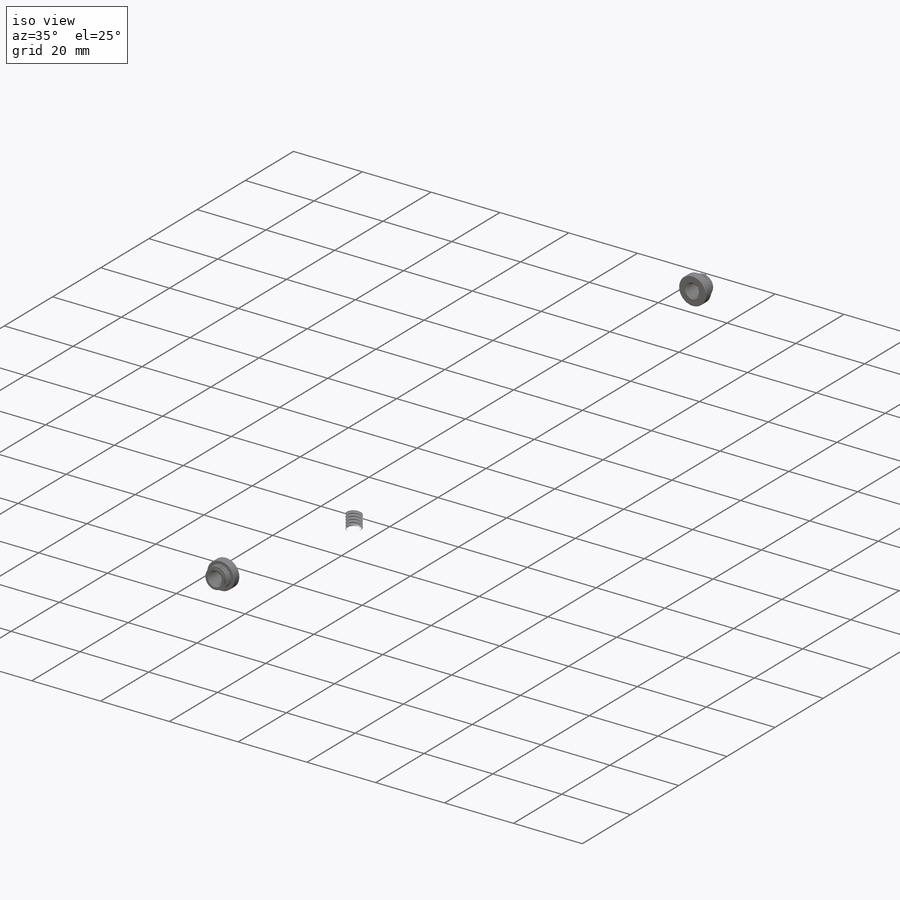
[diagram: iso view]
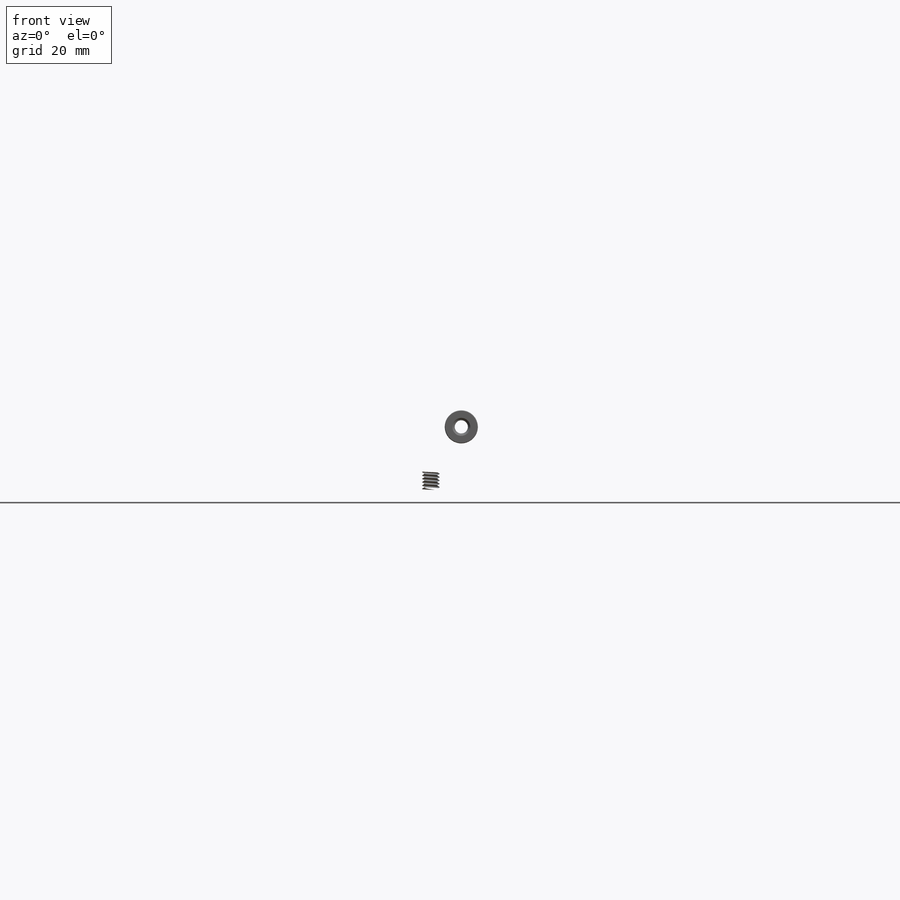
[diagram: front view]
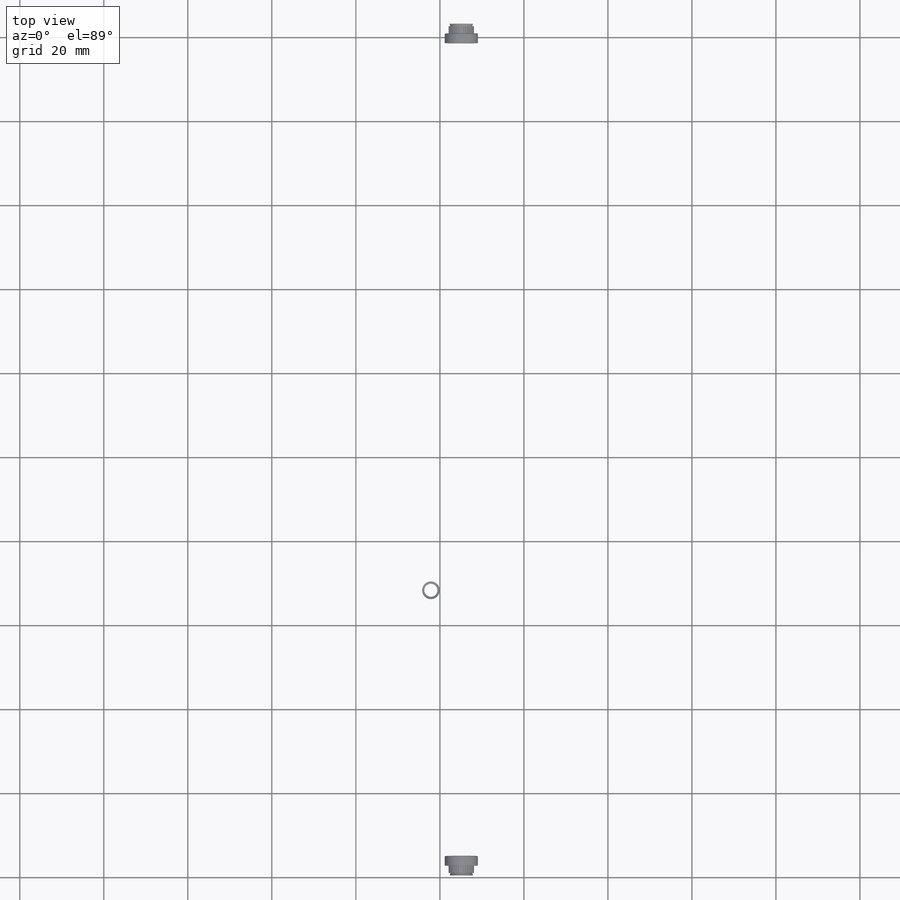
[diagram: top view]
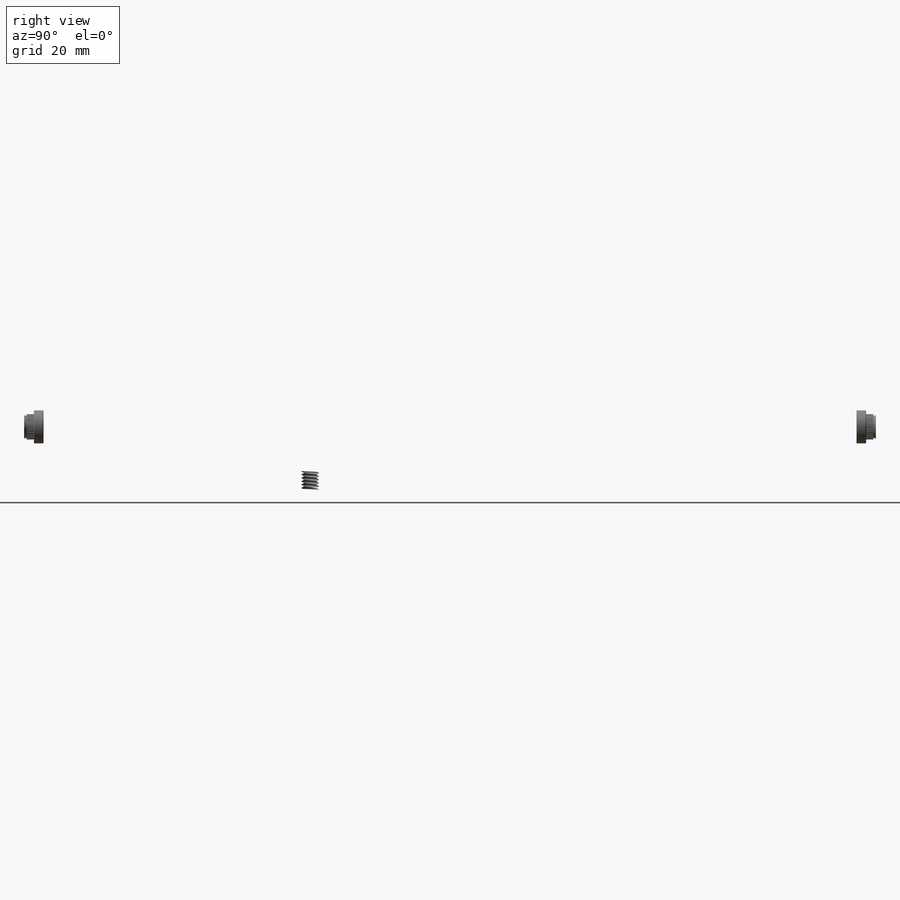
[diagram: right view]
SOLIDWORKS PART (.sldprt)
format: sldprt  version: not decoded by parser v0  size: 11,066,880 bytes
history: native  units: mm
features: sketch x27, move_body x17, extrude x15, cut_extrude x10, fillet x5, mirror x2, material x1, delete_body x1 + 17 further entries (+97 scaffold rows collapsed; 85 parser-record rows omitted)
feature tree (277):
  scaffold x97  (default folders/planes/origin — collapsed)
  material  "Material <not specified>"
  sketch  "Sketch3"  dims[D1=5.4102mm D2=15.875mm D3=15.875mm]
  cut_extrude  "Cut-Extrude1"  Depth=7.62mm
  sketch  "Sketch4"  dims[D1=5.4102mm]
  cut_extrude  "Cut-Extrude2"  Depth=5.08mm
  sketch  "Sketch5"  dims[D1=0.0mm]
  extrude  "Boss-Extrude1"  [1 undecoded]
  sketch  "Sketch6"  dims[D1=0.0mm]
  extrude  "Boss-Extrude2"  [1 undecoded]
  sketch  "Sketch7"  dims[D1=31.75mm D2=31.75mm]
  cut_extrude  "Cut-Extrude3"  [1 undecoded]
  sketch  "Sketch8"  dims[c1.D3=5.4102mm c1.D4=5.4102mm c1.D1=19.05mm c1.D2=19.05mm c1.D5=25.4mm c1.D6=12.7mm c1.D7=12.7mm c1.D8=12.7mm c2.D7=3.175mm c2.D6=3.175mm]
  extrude  "Boss-Extrude3"  Depth=2.54mm
  sketch  "Sketch9"  dims[c1.D3=5.4102mm c1.D4=5.4102mm c1.D13=5.4102mm c1.D5=19.05mm c1.D6=12.7mm c1.D7=10.414mm c1.D8=9.271mm c1.D9=29.21mm c1.D10=19.05mm c1.D11=19.05mm c1.D12=13.462mm c2.D9=12.7mm c2.D7=12.7mm c2.D8=12.7mm c2.D12=12.7mm c3.D7=12.7mm c3.D8=12.7mm c3.D1=0.0mm c3.D2=0.0mm]
  extrude  "Boss-Extrude4"  Depth=2.54mm
  fillet  "Fillet3"  Radius=6.35mm
  sketch  "Sketch10"
  extrude  "Boss-Extrude5"  Depth=3.048mm
  sketch  "Sketch11"  dims[D1=5.4102mm D2=6.35mm]
  cut_extrude  "Cut-Extrude4"  Depth=5.08mm
  sketch  "Sketch12"
  extrude  "Boss-Extrude6"  Depth=3.048mm
  "96439A360"
  parser-record x85  (decoder bookkeeping rows leaked as tree rows — omitted from the tree; the rows remain in map.json)
  move_body  "Body-Move/Copy2"
  "96439A3604"
  move_body  "Body-Move/Copy8"
  "96439A3605"
  move_body  "Body-Move/Copy11"
  "96439A3606"
  move_body  "Body-Move/Copy13"
  "96439A36011"
  move_body  "Body-Move/Copy23"
  "96439A36012"
  move_body  "Body-Move/Copy25"
  sketch  "Sketch23"
  extrude  "Boss-Extrude13"  [1 undecoded]
  sketch  "Sketch13"  dims[D1=8.3312mm]
  "96439A6102"
  move_body  "Body-Move/Copy29"
  "96439A36013"
  move_body  "Body-Move/Copy31"
  "96439A36016"
  move_body  "Body-Move/Copy43"
  "96439A36017"
  move_body  "Body-Move/Copy45"
  sketch  "Sketch16"  dims[D2=5.4102mm D3=5.4102mm D1=19.05mm D4=25.4mm D5=12.7mm D6=12.7mm]
  extrude  "Boss-Extrude7"  Depth=2.54mm
  mirror  "Mirror4"
  "96439A36018"
  move_body  "Body-Move/Copy47"
  "96439A36019"
  move_body  "Body-Move/Copy49"
  mirror  "Mirror5"
  sketch  "Sketch18"
  extrude  "Boss-Extrude9"  [1 undecoded]
  sketch  "Sketch19"  dims[D1=6.35mm]
  cut_extrude  "Cut-Extrude5"  Depth=25.4mm
  sketch  "Sketch21"  dims[D1=0.0mm]
  extrude  "Boss-Extrude11"  [1 undecoded]
  sketch  "Sketch22"
  extrude  "Boss-Extrude12"  Depth=0.127mm
  fillet  "Fillet7"  Radius=1.524mm
  sketch  "Sketch24"
  extrude  "Boss-Extrude14"  [1 undecoded]
  sketch  "Sketch25"  dims[D1=25.4mm D2=25.4mm]
  cut_extrude  "Cut-Extrude7"  Depth=7.874mm
  "96439A450"
  move_body  "Body-Move/Copy53"
  "96439A4503"
  move_body  "Body-Move/Copy55"
  "96439A4504"
  move_body  "Body-Move/Copy57"
  "96439A4505"
  move_body  "Body-Move/Copy59"
  sketch  "Sketch26"  dims[c1.D1=0.0mm c1.D2=0.0mm c1.D3=0.0mm c1.D4=0.0mm c2.D1=0.0mm c2.D2=0.0mm c2.D3=0.0mm c2.D4=0.0mm c2.D5=0.0mm c2.D6=0.0mm c2.D7=0.0mm c2.D8=0.0mm]
  cut_extrude  "Cut-Extrude8"  Depth=7.62mm
  sketch  "Sketch27"
  extrude  "Boss-Extrude15"  [1 undecoded]
  sketch  "Sketch28"  dims[D1=0.0mm D2=0.0mm]
  cut_extrude  "Cut-Extrude9"  Depth=12.7mm
  fillet  "Fillet5"  Radius=6.35mm
  fillet  "Fillet4"  Radius=3.175mm
  sketch  "Sketch30"
  sketch  "Sketch31"
  extrude  "Boss-Extrude16"  [1 undecoded]
  sketch  "Sketch32"  dims[D1=4.7625mm D2=101.6mm]
  cut_extrude  "Cut-Extrude10"  Depth=7.62mm
  sketch  "Sketch33"  dims[D1=25.4mm D2=19.05mm D3=6.35mm]
  extrude  "Boss-Extrude17"  Depth=2.54mm
  fillet  "Fillet8"  Radius=6.35mm
  "96439A36020"
  move_body  "Body-Move/Copy61"
  delete_body  "Body-Delete1"
  sketch  "Sketch34"  dims[D1=3.175mm D2=9.525mm D3=9.525mm]
  cut_extrude  "Cut-Extrude11"  Depth=5.08mm
decode coverage: 39 of 77 modeling features carry decoded parameters; 17 rows unclassified (native names shown)
note: 9 parameter values undecoded
summary: no parameter record found for 9 features
note: suppression state not decoded; provenance and decode notes live in map.json
